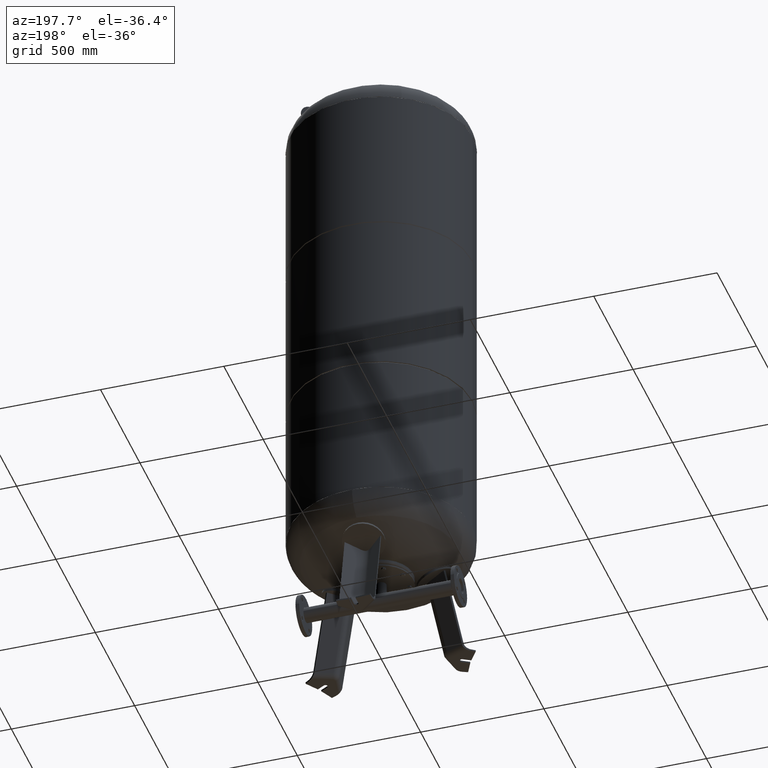
[diagram: clean part render]
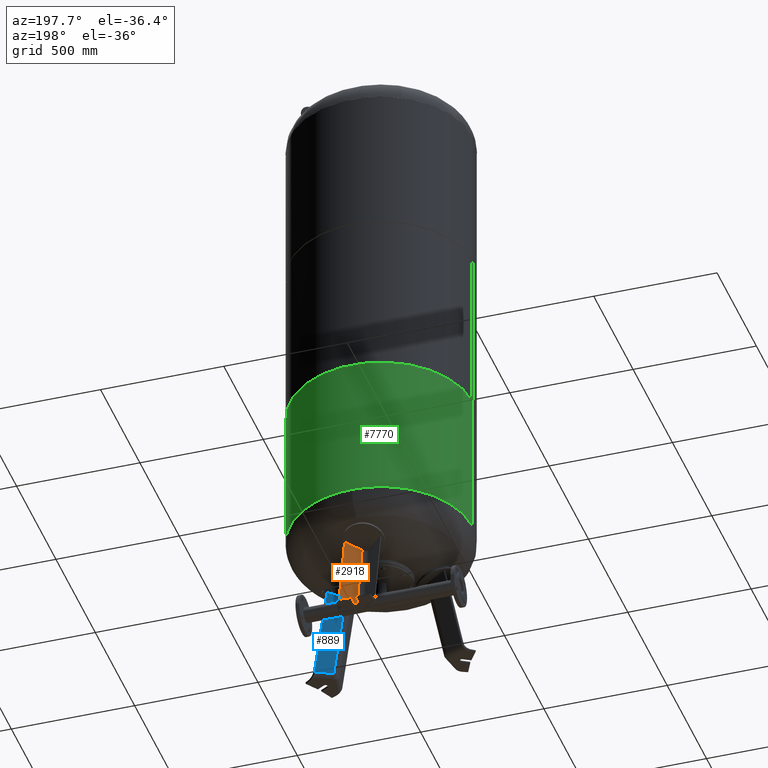
[diagram: same view with three faces highlighted in distinct colors, each labeled with its STEP entity id]
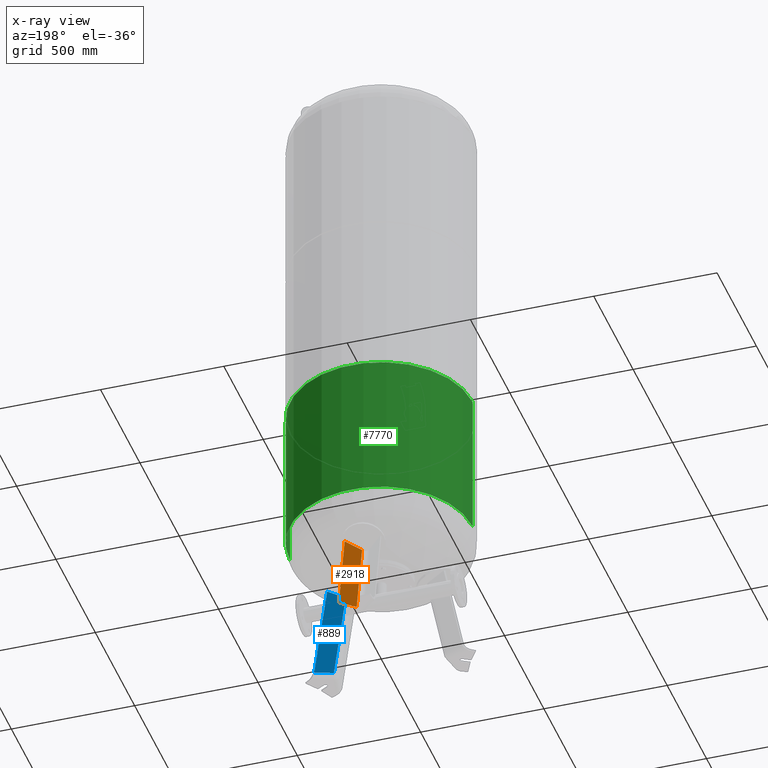
[diagram: x-ray of the same camera — body ghosted, the three highlighted faces saturated]
A machine part, auxiliary view with three faces highlighted in distinct colors.
The next image is the same camera in x-ray (body ghosted, the three faces saturated) — at least one of them is partly hidden behind the body in this view.
Their STEP definitions:

[orange] entity #2918 — the highlighted planar face has unit normal (-0.6455, 0.7471, 0.1588).
#2107=CARTESIAN_POINT('',(16.136450826554512,261.124712592942840,27.029948423057292));
#2108=VERTEX_POINT('',#2107);
#2186=CARTESIAN_POINT('',(16.136450826554519,192.715673142448080,348.869175182353330));
#2187=VERTEX_POINT('',#2186);
#2268=CARTESIAN_POINT('',(72.837866169854991,236.666342471293090,372.562952014676110));
#2269=VERTEX_POINT('',#2268);
#2277=CARTESIAN_POINT('',(16.136450826554519,192.715673142448080,348.869175182353330));
#2278=CARTESIAN_POINT('',(17.841674515575601,194.060296001854710,349.474179354457020));
#2279=CARTESIAN_POINT('',(19.549197401052123,195.404360503866230,350.091155577606000));
#2280=CARTESIAN_POINT('',(27.027584395690265,201.281062567770420,352.839681936076030));
#2281=CARTESIAN_POINT('',(32.821119649068933,205.808321693151900,355.088683497572050));
#2282=CARTESIAN_POINT('',(49.986371892525625,219.154303838601460,362.069703598062690));
#2283=CARTESIAN_POINT('',(61.407704358636408,227.947645156400600,367.122797962066270));
#2284=CARTESIAN_POINT('',(72.837866169854991,236.666342471293090,372.562952014676110));
#2285=B_SPLINE_CURVE_WITH_KNOTS('',3,(#2277,#2278,#2279,#2280,#2281,#2282,#2283,#2284),.UNSPECIFIED.,.F.,.U.,(4,2,2,4),(5.937335443723129,6.588195328792665,8.784260438390220,13.073486937020286),.UNSPECIFIED.);
#2286=EDGE_CURVE('',#2187,#2269,#2285,.T.);
#2570=CARTESIAN_POINT('',(72.837866169855019,310.111649658243320,27.029948423057292));
#2571=VERTEX_POINT('',#2570);
#2572=CARTESIAN_POINT('',(16.136450826554512,261.124712592942840,27.029948423057292));
#2573=DIRECTION('',(0.756707249513242,0.653753882232530,0.0));
#2574=VECTOR('',#2573,74.931772333057651);
#2575=LINE('',#2572,#2574);
#2576=EDGE_CURVE('',#2108,#2571,#2575,.T.);
#2891=CARTESIAN_POINT('',(16.136450826554519,192.715673142448080,348.869175182353330));
#2892=DIRECTION('',(-2.159512E-017,0.207911690817760,-0.978147600733805));
#2893=VECTOR('',#2892,329.029306535999810);
#2894=LINE('',#2891,#2893);
#2895=EDGE_CURVE('',#2187,#2108,#2894,.T.);
#2902=CARTESIAN_POINT('',(-1.203904E-014,267.326671309510000,-67.735293817669458));
#2903=DIRECTION('',(-0.645458033062181,0.747104967402683,0.158802063077708));
#2904=DIRECTION('',(-1.937853E-016,-0.207911690817760,0.978147600733806));
#2905=AXIS2_PLACEMENT_3D('',#2902,#2903,#2904);
#2906=PLANE('',#2905);
#2907=ORIENTED_EDGE('',*,*,#2895,.F.);
#2908=ORIENTED_EDGE('',*,*,#2286,.T.);
#2909=CARTESIAN_POINT('',(72.837866169855019,310.111649658243320,27.029948423057292));
#2910=DIRECTION('',(-8.045723E-017,-0.207911690817760,0.978147600733805));
#2911=VECTOR('',#2910,353.252416437355920);
#2912=LINE('',#2909,#2911);
#2913=EDGE_CURVE('',#2571,#2269,#2912,.T.);
#2914=ORIENTED_EDGE('',*,*,#2913,.F.);
#2915=ORIENTED_EDGE('',*,*,#2576,.F.);
#2916=EDGE_LOOP('',(#2907,#2908,#2914,#2915));
#2917=FACE_OUTER_BOUND('',#2916,.T.);
#2918=ADVANCED_FACE('',(#2917),#2906,.T.);

[blue] entity #889 — the highlighted planar face has unit normal (-0.3243, 0.9325, -0.1588).
#206=CARTESIAN_POINT('',(228.446542867102380,-113.260904562808190,21.029948423057281));
#207=VERTEX_POINT('',#206);
#274=CARTESIAN_POINT('',(235.867665870318120,-51.307770812481863,369.683830982885010));
#275=VERTEX_POINT('',#274);
#283=CARTESIAN_POINT('',(168.629558662939530,-78.725552630423095,345.982061508122970));
#284=VERTEX_POINT('',#283);
#285=CARTESIAN_POINT('',(168.629558662939530,-78.725552630423095,345.982061508122970));
#286=CARTESIAN_POINT('',(171.916953450706330,-77.416967662112370,346.953435462919860));
#287=CARTESIAN_POINT('',(175.206603742219810,-76.102127684768334,347.956934926011120));
#288=CARTESIAN_POINT('',(185.226738944397770,-72.082256563316363,351.101192125903480));
#289=CARTESIAN_POINT('',(191.964173633378690,-69.358966146401485,353.334982197884360));
#290=CARTESIAN_POINT('',(211.101980844404180,-61.570850509133479,359.988747504562350));
#291=CARTESIAN_POINT('',(223.507500250926970,-56.459906333785042,364.669037481009410));
#292=CARTESIAN_POINT('',(235.867665870318120,-51.307770812481863,369.683830982885010));
#293=B_SPLINE_CURVE_WITH_KNOTS('',3,(#285,#286,#287,#288,#289,#290,#291,#292),.UNSPECIFIED.,.F.,.U.,(4,2,2,4),(5.453253502265779,6.515864870681246,8.687819827574995,12.681292855444173),.UNSPECIFIED.);
#294=EDGE_CURVE('',#284,#275,#293,.T.);
#372=CARTESIAN_POINT('',(300.047657155193010,-88.362106057392339,21.029948423057284));
#373=VERTEX_POINT('',#372);
#374=CARTESIAN_POINT('',(228.446542867102380,-113.260904562808190,21.029948423057281));
#375=DIRECTION('',(0.944521094592692,0.328450760190053,4.686537E-017));
#376=VECTOR('',#375,75.806792138366561);
#377=LINE('',#374,#376);
#378=EDGE_CURVE('',#207,#373,#377,.T.);
#854=CARTESIAN_POINT('',(300.047657155193010,-88.362106057392339,21.029948423057284));
#855=DIRECTION('',(-0.180056805991955,0.103955845408880,0.978147600733806));
#856=VECTOR('',#855,356.443017698216290);
#857=LINE('',#854,#856);
#858=EDGE_CURVE('',#373,#275,#857,.T.);
#873=CARTESIAN_POINT('',(224.644894962710680,-129.698790578796320,-67.735293817669458));
#874=DIRECTION('',(-0.324282864533176,0.932535537409927,-0.158802063077709));
#875=DIRECTION('',(0.180056805991956,-0.103955845408880,-0.978147600733806));
#876=AXIS2_PLACEMENT_3D('',#873,#874,#875);
#877=PLANE('',#876);
#878=CARTESIAN_POINT('',(168.629558662939530,-78.725552630423095,345.982061508122970));
#879=DIRECTION('',(0.180056805991956,-0.103955845408880,-0.978147600733805));
#880=VECTOR('',#879,332.211736594034330);
#881=LINE('',#878,#880);
#882=EDGE_CURVE('',#284,#207,#881,.T.);
#883=ORIENTED_EDGE('',*,*,#882,.F.);
#884=ORIENTED_EDGE('',*,*,#294,.T.);
#885=ORIENTED_EDGE('',*,*,#858,.F.);
#886=ORIENTED_EDGE('',*,*,#378,.F.);
#887=EDGE_LOOP('',(#883,#884,#885,#886));
#888=FACE_OUTER_BOUND('',#887,.T.);
#889=ADVANCED_FACE('',(#888),#877,.T.);

[green] entity #7770 — the highlighted cylindrical surface (partial cylindrical patch) has radius 370 mm, axis along (0, 0, 1).
#7638=CARTESIAN_POINT('',(370.000000000000110,0.0,1109.333333333333000));
#7639=VERTEX_POINT('',#7638);
#7655=CARTESIAN_POINT('',(-370.0,-4.531044E-014,1109.333333333333000));
#7656=VERTEX_POINT('',#7655);
#7710=CARTESIAN_POINT('',(370.0,0.0,512.0));
#7711=VERTEX_POINT('',#7710);
#7712=CARTESIAN_POINT('',(370.000000000000110,0.0,1109.333333333333000));
#7713=DIRECTION('',(0.0,0.0,-1.0));
#7714=VECTOR('',#7713,597.333333333333030);
#7715=LINE('',#7712,#7714);
#7716=EDGE_CURVE('',#7639,#7711,#7715,.T.);
#7719=CARTESIAN_POINT('',(-370.0,4.531044E-014,512.0));
#7720=VERTEX_POINT('',#7719);
#7721=CARTESIAN_POINT('',(-370.0,-4.531044E-014,1109.333333333333000));
#7722=DIRECTION('',(0.0,0.0,-1.0));
#7723=VECTOR('',#7722,597.333333333333030);
#7724=LINE('',#7721,#7723);
#7725=EDGE_CURVE('',#7656,#7720,#7724,.T.);
#7742=CARTESIAN_POINT('',(-1.560433E-014,0.0,512.0));
#7743=DIRECTION('',(0.0,0.0,-1.0));
#7744=DIRECTION('',(1.0,0.0,0.0));
#7745=AXIS2_PLACEMENT_3D('',#7742,#7743,#7744);
#7746=CIRCLE('',#7745,370.0);
#7747=EDGE_CURVE('',#7720,#7711,#7746,.T.);
#7753=CARTESIAN_POINT('',(-1.116699E-014,0.0,778.166666666666520));
#7754=DIRECTION('',(1.667129E-017,0.0,1.0));
#7755=DIRECTION('',(1.0,0.0,0.0));
#7756=AXIS2_PLACEMENT_3D('',#7753,#7754,#7755);
#7757=CYLINDRICAL_SURFACE('',#7756,370.0);
#7758=ORIENTED_EDGE('',*,*,#7716,.T.);
#7759=ORIENTED_EDGE('',*,*,#7747,.F.);
#7760=ORIENTED_EDGE('',*,*,#7725,.F.);
#7761=CARTESIAN_POINT('',(-5.646011E-015,0.0,1109.333333333333000));
#7762=DIRECTION('',(0.0,0.0,1.0));
#7763=DIRECTION('',(1.0,0.0,0.0));
#7764=AXIS2_PLACEMENT_3D('',#7761,#7762,#7763);
#7765=CIRCLE('',#7764,370.000000000000110);
#7766=EDGE_CURVE('',#7639,#7656,#7765,.T.);
#7767=ORIENTED_EDGE('',*,*,#7766,.F.);
#7768=EDGE_LOOP('',(#7758,#7759,#7760,#7767));
#7769=FACE_OUTER_BOUND('',#7768,.T.);
#7770=ADVANCED_FACE('',(#7769),#7757,.T.);